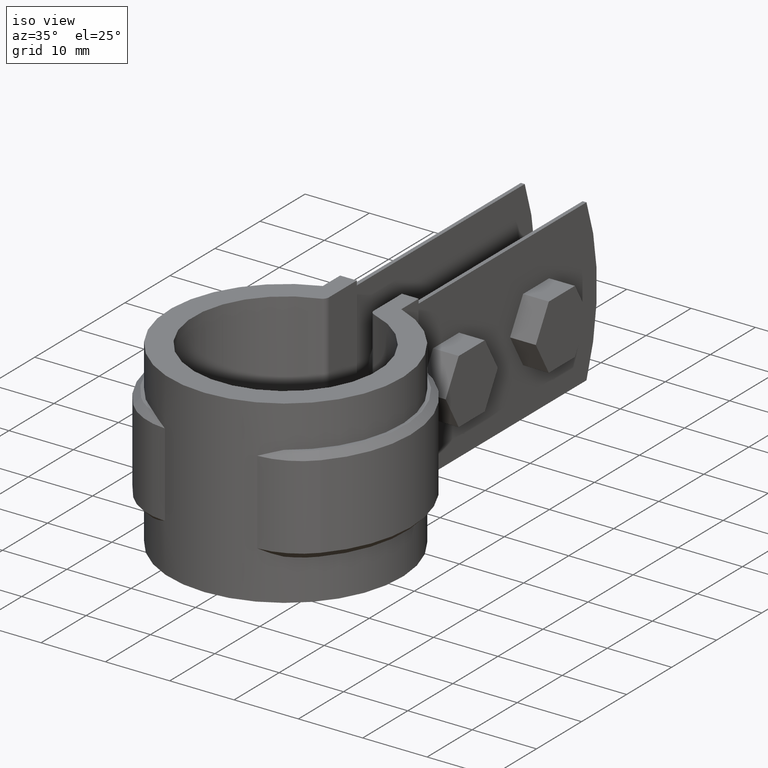
[diagram: clean part render]
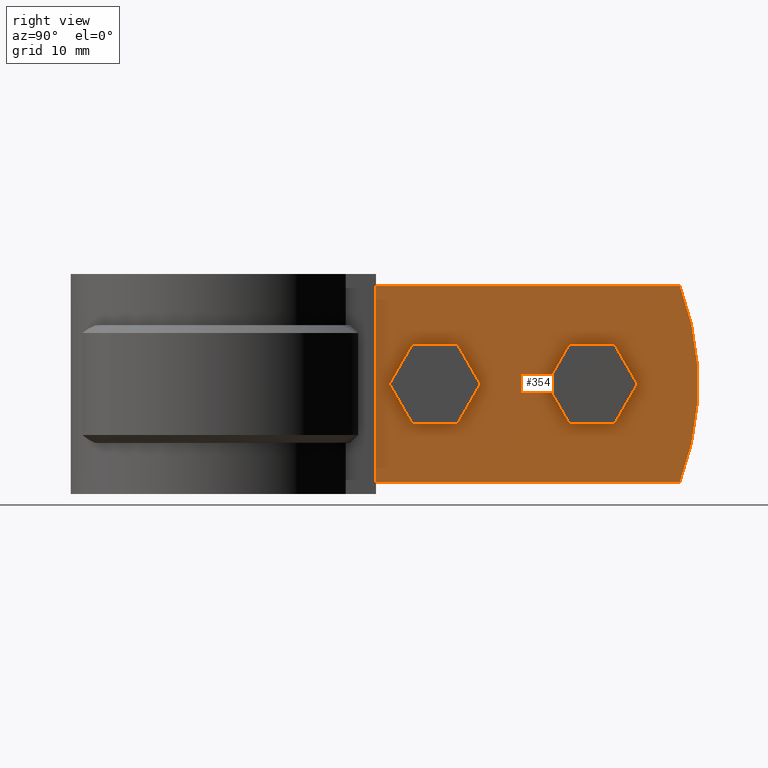
[diagram: tour spotlight — one face highlighted and labeled with its STEP entity id]
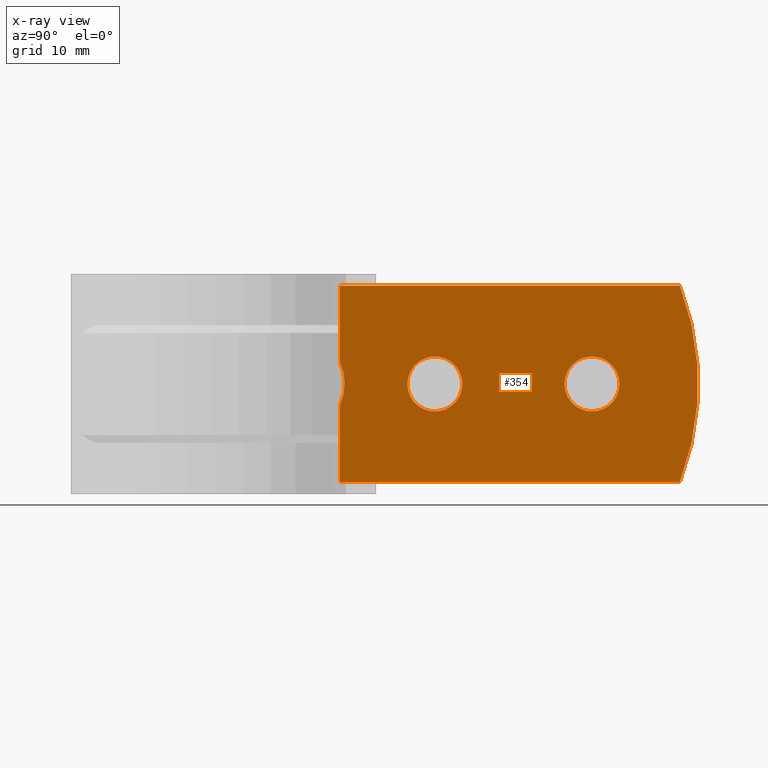
[diagram: x-ray of the same camera — body ghosted, this tour face saturated]
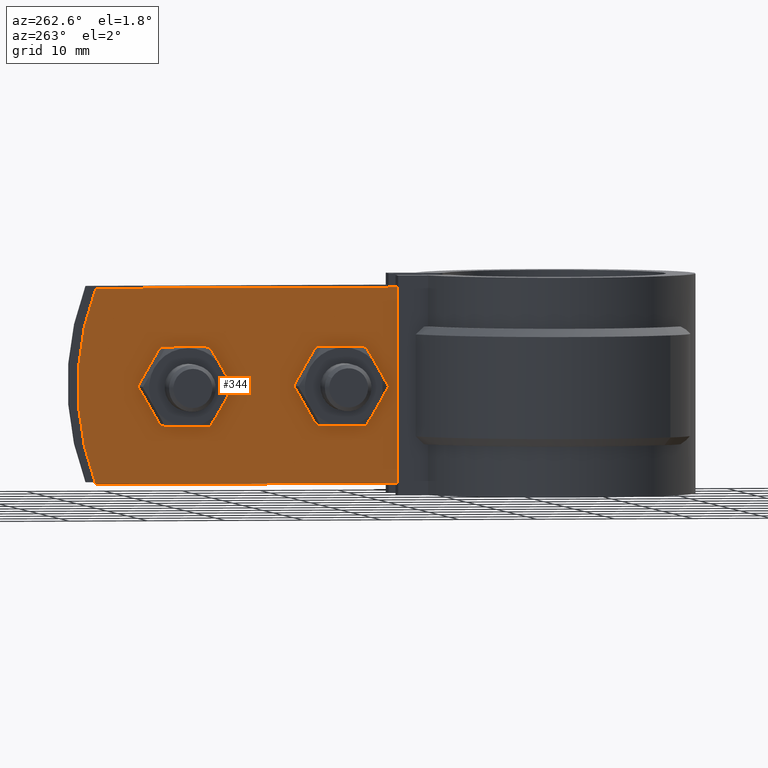
[diagram: tour spotlight — one face highlighted and labeled with its STEP entity id]
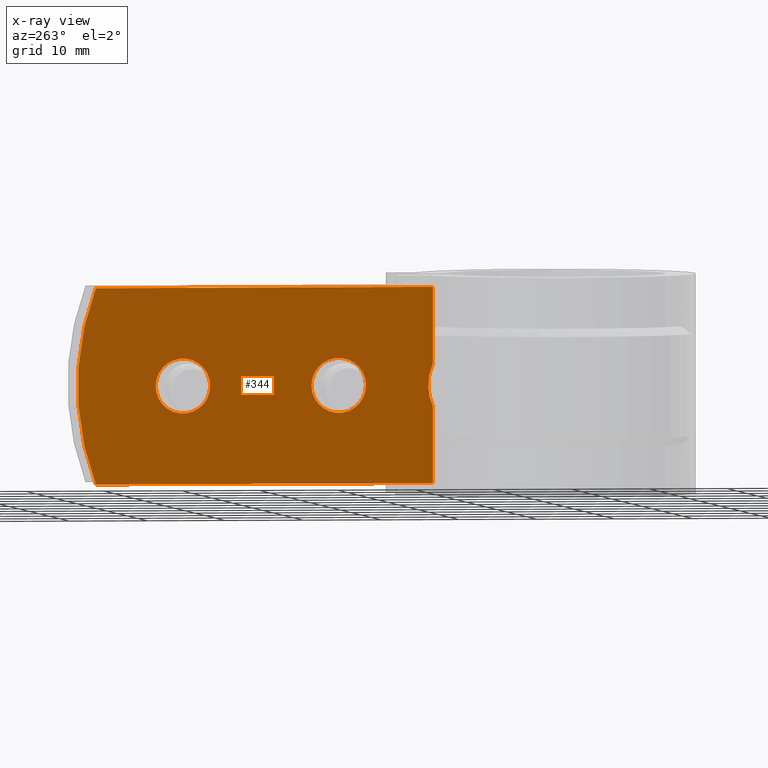
[diagram: x-ray of the same camera — body ghosted, this tour face saturated]
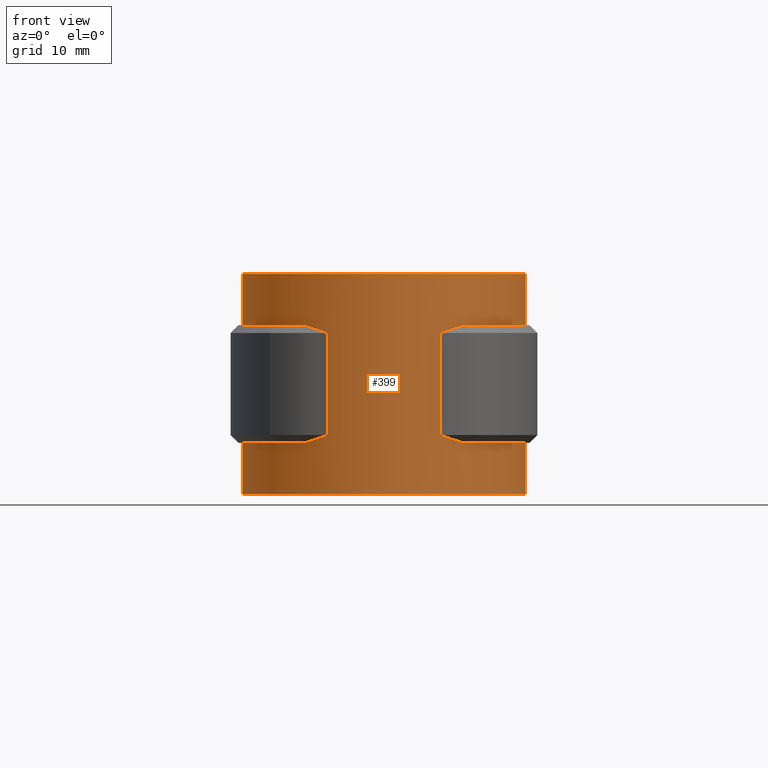
[diagram: tour spotlight — one face highlighted and labeled with its STEP entity id]
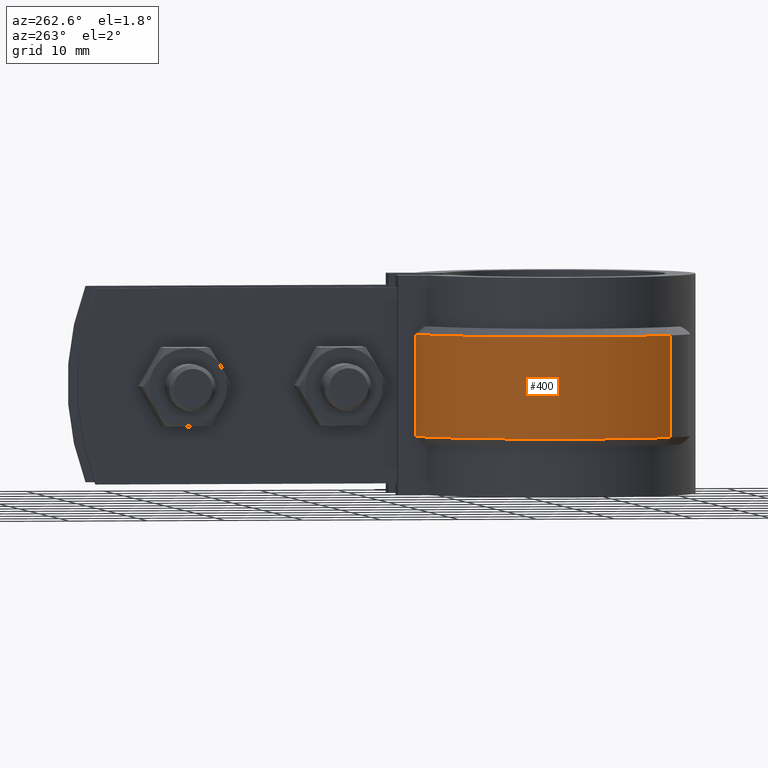
[diagram: tour spotlight — one face highlighted and labeled with its STEP entity id]
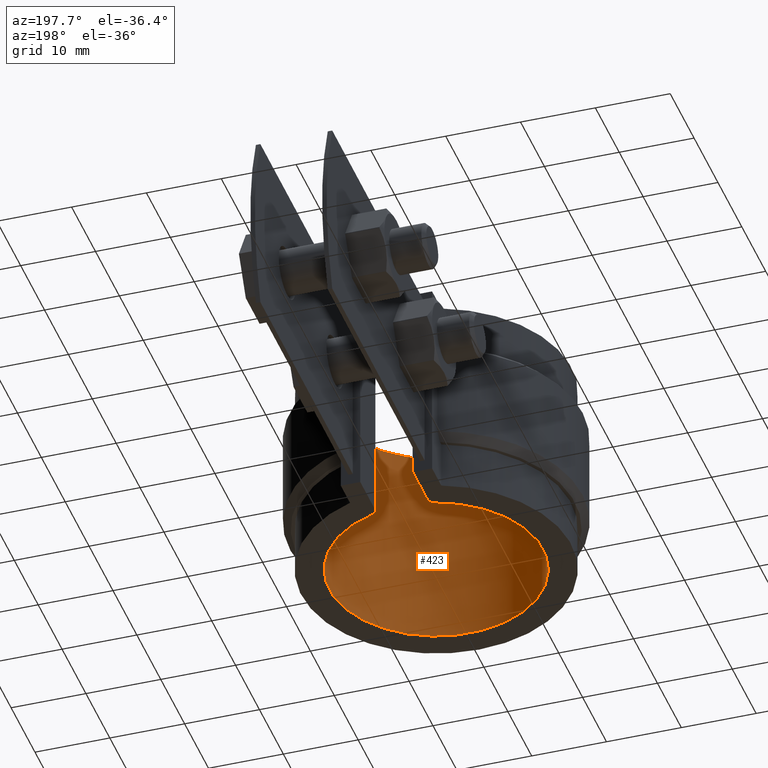
[diagram: tour spotlight — one face highlighted and labeled with its STEP entity id]
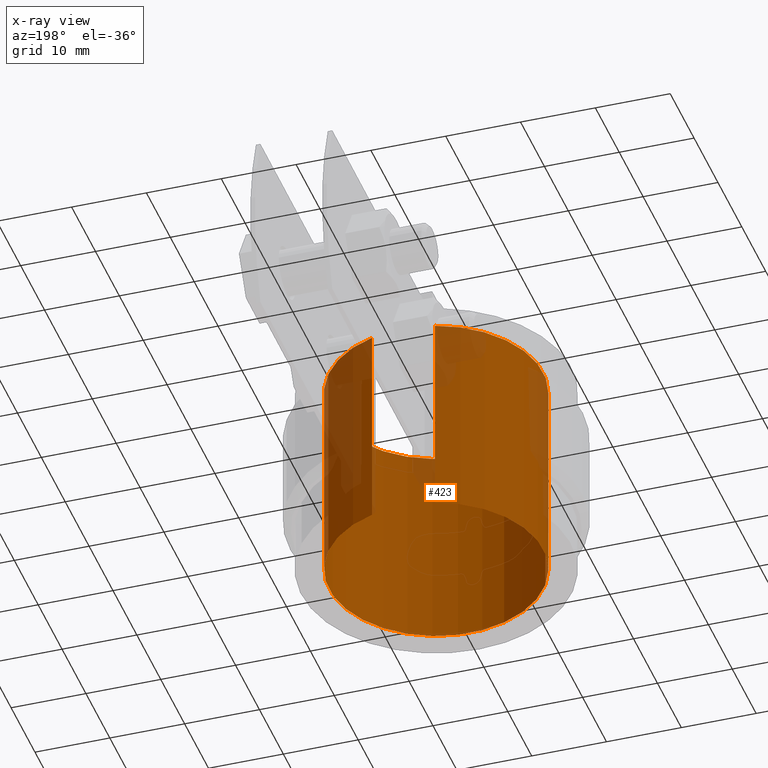
[diagram: x-ray of the same camera — body ghosted, this tour face saturated]
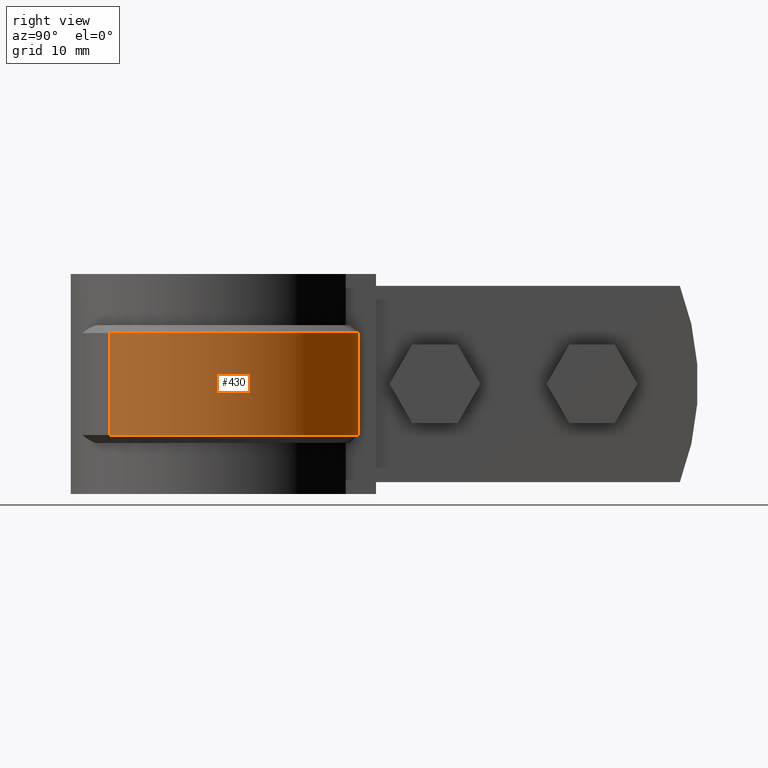
[diagram: tour spotlight — one face highlighted and labeled with its STEP entity id]
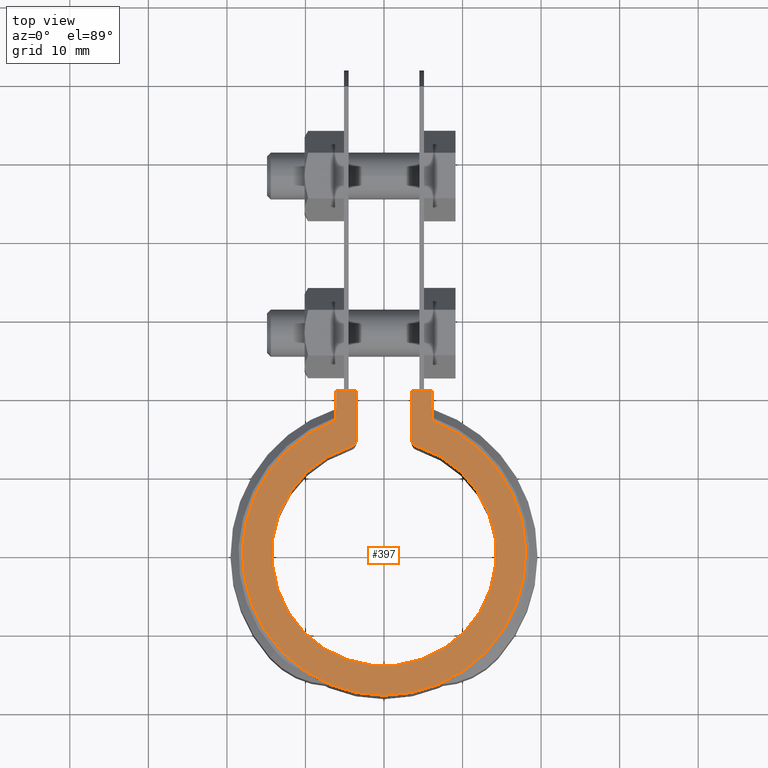
[diagram: tour spotlight — one face highlighted and labeled with its STEP entity id]
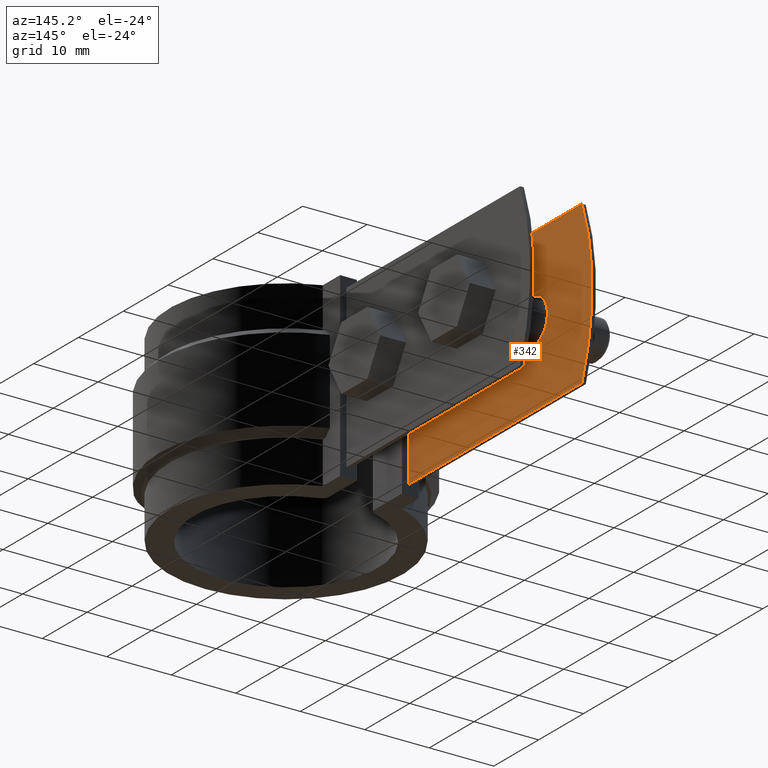
[diagram: tour spotlight — one face highlighted and labeled with its STEP entity id]
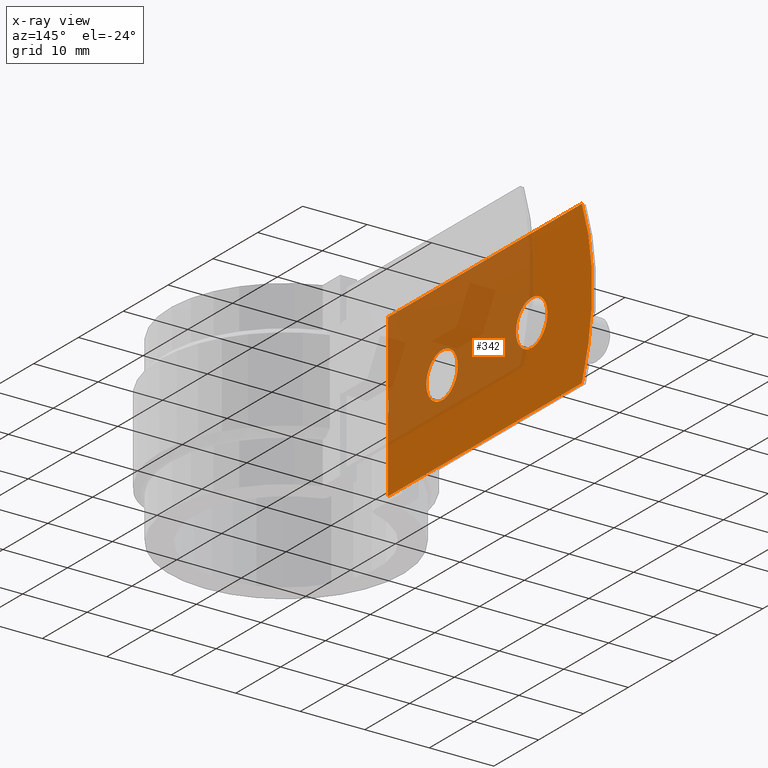
[diagram: x-ray of the same camera — body ghosted, this tour face saturated]
A machine part: a face-by-face anatomy tour. The part has 186 B-rep faces; the first image is the clean iso view, then the 8 largest visible faces are spotlighted one at a time (largest first), each with its STEP entity span.

Face 1 — right view, entity #354. An x-ray twin of the same camera follows (body ghosted, this face saturated) — the face is partly hidden behind the body. In plain terms, the highlighted planar face has unit normal (-1, 0, 0).
Definition (entity closure, byte-faithful):
#354 = ADVANCED_FACE( '', ( #590, #591, #592 ), #593, .F. );
#590 = FACE_BOUND( '', #1212, .T. );
#591 = FACE_BOUND( '', #1213, .T. );
#592 = FACE_OUTER_BOUND( '', #1214, .T. );
#593 = PLANE( '', #1215 );
#1212 = EDGE_LOOP( '', ( #2607 ) );
#1213 = EDGE_LOOP( '', ( #2608 ) );
#1214 = EDGE_LOOP( '', ( #2609, #2610, #2611, #2612, #2613, #2614 ) );
#1215 = AXIS2_PLACEMENT_3D( '', #2615, #2616, #2617 );
#2607 = ORIENTED_EDGE( '', *, *, #4443, .F. );
#2608 = ORIENTED_EDGE( '', *, *, #4440, .F. );
#2609 = ORIENTED_EDGE( '', *, *, #4352, .F. );
#2610 = ORIENTED_EDGE( '', *, *, #4445, .T. );
#2611 = ORIENTED_EDGE( '', *, *, #4446, .T. );
#2612 = ORIENTED_EDGE( '', *, *, #4441, .F. );
#2613 = ORIENTED_EDGE( '', *, *, #4332, .F. );
#2614 = ORIENTED_EDGE( '', *, *, #4372, .T. );
#2615 = CARTESIAN_POINT( '', ( 5.10000000000000, 16.2373058110020, 0.000000000000000 ) );
#2616 = DIRECTION( '', ( -1.00000000000000, 6.12303176911189E-017, 0.000000000000000 ) );
#2617 = DIRECTION( '', ( 6.12303176911189E-017, 1.00000000000000, 0.000000000000000 ) );
#4332 = EDGE_CURVE( '', #4842, #4844, #4845, .T. );
#4352 = EDGE_CURVE( '', #4879, #4873, #4881, .T. );
#4372 = EDGE_CURVE( '', #4842, #4873, #4915, .T. );
#4440 = EDGE_CURVE( '', #5024, #5024, #5025, .F. );
#4441 = EDGE_CURVE( '', #4844, #5026, #5027, .T. );
#4443 = EDGE_CURVE( '', #5029, #5029, #5030, .F. );
#4445 = EDGE_CURVE( '', #4879, #5031, #5033, .T. );
#4446 = EDGE_CURVE( '', #5031, #5026, #5034, .T. );
#4842 = VERTEX_POINT( '', #5785 );
#4844 = VERTEX_POINT( '', #5787 );
#4845 = LINE( '', #5788, #5789 );
#4873 = VERTEX_POINT( '', #5876 );
#4879 = VERTEX_POINT( '', #5939 );
#4881 = B_SPLINE_CURVE_WITH_KNOTS( '', 3, ( #5950, #5951, #5952, #5953, #5954, #5955, #5956, #5957, #5958, #5959, #5960, #5961 ), .UNSPECIFIED., .F., .F., ( 4, 2, 2, 2, 2, 4 ), ( 0.000000000000000, 0.00138728214973930, 0.00277456429947860, 0.00416184644921790, 0.00485548752408755, 0.00554912859895719 ), .UNSPECIFIED. );
#4915 = LINE( '', #6125, #6126 );
#5024 = VERTEX_POINT( '', #6567 );
#5025 = CIRCLE( '', #6568, 3.50000000000000 );
#5026 = VERTEX_POINT( '', #6569 );
#5027 = CIRCLE( '', #6570, 35.0000000000000 );
#5029 = VERTEX_POINT( '', #6573 );
#5030 = CIRCLE( '', #6574, 3.50000000000000 );
#5031 = VERTEX_POINT( '', #6575 );
#5033 = LINE( '', #6577, #6578 );
#5034 = LINE( '', #6579, #6580 );
#5785 = CARTESIAN_POINT( '', ( 5.10000000000000, 16.2373058110020, 0.000000000000000 ) );
#5787 = CARTESIAN_POINT( '', ( 5.09999999999998, 59.5136886423742, -5.19712097809869E-031 ) );
#5788 = CARTESIAN_POINT( '', ( 5.10000000000000, 16.2373058110020, 0.000000000000000 ) );
#5789 = VECTOR( '', #8187, 1000.00000000000 );
#5876 = CARTESIAN_POINT( '', ( 5.10000000000000, 16.2373058110020, -9.79606498355246 ) );
#5939 = CARTESIAN_POINT( '', ( 5.10000000000000, 16.2373058110020, -15.2039350164475 ) );
#5950 = CARTESIAN_POINT( '', ( 5.10000000000000, 16.2373058110020, -15.2039350164475 ) );
#5951 = CARTESIAN_POINT( '', ( 5.10000000000000, 16.4315927832088, -14.7773714083927 ) );
#5952 = CARTESIAN_POINT( '', ( 5.10000000000000, 16.5789455950492, -14.3381576368187 ) );
#5953 = CARTESIAN_POINT( '', ( 5.10000000000000, 16.7805541732397, -13.4346376484368 ) );
#5954 = CARTESIAN_POINT( '', ( 5.09999999999998, 16.8342213574134, -12.9645446164013 ) );
#5955 = CARTESIAN_POINT( '', ( 5.09999999999998, 16.8344053278858, -12.0378944378008 ) );
#5956 = CARTESIAN_POINT( '', ( 5.10000000000000, 16.7827899506090, -11.5786923289417 ) );
#5957 = CARTESIAN_POINT( '', ( 5.10000000000000, 16.6315029371098, -10.8957788416371 ) );
#5958 = CARTESIAN_POINT( '', ( 5.10000000000001, 16.5685275525493, -10.6693284421304 ) );
#5959 = CARTESIAN_POINT( '', ( 5.10000000000001, 16.4200973172809, -10.2266311927812 ) );
#5960 = CARTESIAN_POINT( '', ( 5.09999999999998, 16.3344383490480, -10.0093227507501 ) );
#5961 = CARTESIAN_POINT( '', ( 5.09999999999998, 16.2373058110020, -9.79606498355245 ) );
#6125 = CARTESIAN_POINT( '', ( 5.10000000000000, 16.2373058110020, 0.000000000000000 ) );
#6126 = VECTOR( '', #8224, 1000.00000000000 );
#6567 = CARTESIAN_POINT( '', ( 5.10000000000000, 44.8219465658192, -12.5000000000000 ) );
#6568 = AXIS2_PLACEMENT_3D( '', #8304, #8305, #8306 );
#6569 = CARTESIAN_POINT( '', ( 5.09999999999998, 59.5136886423742, -25.0000000000000 ) );
#6570 = AXIS2_PLACEMENT_3D( '', #8307, #8308, #8309 );
#6573 = CARTESIAN_POINT( '', ( 5.10000000000000, 24.8219465658192, -12.5000000000000 ) );
#6574 = AXIS2_PLACEMENT_3D( '', #8311, #8312, #8313 );
#6575 = CARTESIAN_POINT( '', ( 5.10000000000000, 16.2373058110020, -25.0000000000000 ) );
#6577 = CARTESIAN_POINT( '', ( 5.10000000000000, 16.2373058110020, 0.000000000000000 ) );
#6578 = VECTOR( '', #8317, 1000.00000000000 );
#6579 = CARTESIAN_POINT( '', ( 5.10000000000000, 16.2373058110020, -25.0000000000000 ) );
#6580 = VECTOR( '', #8318, 1000.00000000000 );
#8187 = DIRECTION( '', ( 6.12303176911189E-017, 1.00000000000000, 0.000000000000000 ) );
#8224 = DIRECTION( '', ( 0.000000000000000, 0.000000000000000, -1.00000000000000 ) );
#8304 = CARTESIAN_POINT( '', ( 5.10000000000000, 48.3219465658192, -12.5000000000000 ) );
#8305 = DIRECTION( '', ( -1.00000000000000, 6.12303176911189E-017, 0.000000000000000 ) );
#8306 = DIRECTION( '', ( -6.12303176911189E-017, -1.00000000000000, 0.000000000000000 ) );
#8307 = CARTESIAN_POINT( '', ( 5.10000000000001, 26.8219465658192, -12.5000000000000 ) );
#8308 = DIRECTION( '', ( -1.00000000000000, 6.12303176911189E-017, 0.000000000000000 ) );
#8309 = DIRECTION( '', ( -6.12303176911189E-017, -1.00000000000000, 0.000000000000000 ) );
#8311 = CARTESIAN_POINT( '', ( 5.10000000000000, 28.3219465658192, -12.5000000000000 ) );
#8312 = DIRECTION( '', ( -1.00000000000000, 6.12303176911189E-017, 0.000000000000000 ) );
#8313 = DIRECTION( '', ( -6.12303176911189E-017, -1.00000000000000, 0.000000000000000 ) );
#8317 = DIRECTION( '', ( 0.000000000000000, 0.000000000000000, -1.00000000000000 ) );
#8318 = DIRECTION( '', ( 6.12303176911189E-017, 1.00000000000000, 0.000000000000000 ) );

Face 2 — auxiliary view, entity #344. An x-ray twin of the same camera follows (body ghosted, this face saturated) — the face is partly hidden behind the body. In plain terms, the highlighted planar face has unit normal (1, -0, 0).
Definition (entity closure, byte-faithful):
#344 = ADVANCED_FACE( '', ( #563, #564, #565 ), #566, .F. );
#563 = FACE_BOUND( '', #1185, .T. );
#564 = FACE_BOUND( '', #1186, .T. );
#565 = FACE_OUTER_BOUND( '', #1187, .T. );
#566 = PLANE( '', #1188 );
#1185 = EDGE_LOOP( '', ( #2426 ) );
#1186 = EDGE_LOOP( '', ( #2427 ) );
#1187 = EDGE_LOOP( '', ( #2428, #2429, #2430, #2431, #2432, #2433 ) );
#1188 = AXIS2_PLACEMENT_3D( '', #2434, #2435, #2436 );
#2426 = ORIENTED_EDGE( '', *, *, #4423, .F. );
#2427 = ORIENTED_EDGE( '', *, *, #4430, .F. );
#2428 = ORIENTED_EDGE( '', *, *, #4357, .F. );
#2429 = ORIENTED_EDGE( '', *, *, #4371, .F. );
#2430 = ORIENTED_EDGE( '', *, *, #4329, .F. );
#2431 = ORIENTED_EDGE( '', *, *, #4431, .F. );
#2432 = ORIENTED_EDGE( '', *, *, #4432, .T. );
#2433 = ORIENTED_EDGE( '', *, *, #4433, .F. );
#2434 = CARTESIAN_POINT( '', ( -5.10000000000000, 61.8219465658192, 0.000000000000000 ) );
#2435 = DIRECTION( '', ( 1.00000000000000, -6.12303176911189E-017, 0.000000000000000 ) );
#2436 = DIRECTION( '', ( -6.12303176911189E-017, -1.00000000000000, 0.000000000000000 ) );
#4329 = EDGE_CURVE( '', #4836, #4839, #4840, .T. );
#4357 = EDGE_CURVE( '', #4888, #4882, #4890, .T. );
#4371 = EDGE_CURVE( '', #4839, #4888, #4914, .T. );
#4423 = EDGE_CURVE( '', #4996, #4996, #4997, .F. );
#4430 = EDGE_CURVE( '', #5008, #5008, #5009, .F. );
#4431 = EDGE_CURVE( '', #5010, #4836, #5011, .T. );
#4432 = EDGE_CURVE( '', #5010, #5012, #5013, .T. );
#4433 = EDGE_CURVE( '', #4882, #5012, #5014, .T. );
#4836 = VERTEX_POINT( '', #5777 );
#4839 = VERTEX_POINT( '', #5781 );
#4840 = LINE( '', #5782, #5783 );
#4882 = VERTEX_POINT( '', #5962 );
#4888 = VERTEX_POINT( '', #6027 );
#4890 = B_SPLINE_CURVE_WITH_KNOTS( '', 3, ( #6038, #6039, #6040, #6041, #6042, #6043, #6044, #6045, #6046, #6047, #6048, #6049 ), .UNSPECIFIED., .F., .F., ( 4, 2, 2, 2, 2, 4 ), ( 0.000000000000000, 0.00138728214973932, 0.00277456429947863, 0.00416184644921795, 0.00485548752408760, 0.00554912859895726 ), .UNSPECIFIED. );
#4914 = LINE( '', #6123, #6124 );
#4996 = VERTEX_POINT( '', #6532 );
#4997 = CIRCLE( '', #6533, 3.50000000000000 );
#5008 = VERTEX_POINT( '', #6547 );
#5009 = CIRCLE( '', #6548, 3.50000000000000 );
#5010 = VERTEX_POINT( '', #6549 );
#5011 = CIRCLE( '', #6550, 35.0000000000000 );
#5012 = VERTEX_POINT( '', #6551 );
#5013 = LINE( '', #6552, #6553 );
#5014 = LINE( '', #6554, #6555 );
#5777 = CARTESIAN_POINT( '', ( -5.10000000000002, 59.5136886423742, -4.56849744425070E-031 ) );
#5781 = CARTESIAN_POINT( '', ( -5.10000000000000, 16.2373058110020, 0.000000000000000 ) );
#5782 = CARTESIAN_POINT( '', ( -5.10000000000000, 61.8219465658192, 0.000000000000000 ) );
#5783 = VECTOR( '', #8180, 1000.00000000000 );
#5962 = CARTESIAN_POINT( '', ( -5.10000000000000, 16.2373058110020, -15.2039350164476 ) );
#6027 = CARTESIAN_POINT( '', ( -5.10000000000000, 16.2373058110020, -9.79606498355244 ) );
#6038 = CARTESIAN_POINT( '', ( -5.10000000000000, 16.2373058110020, -9.79606498355244 ) );
#6039 = CARTESIAN_POINT( '', ( -5.10000000000000, 16.4315927832088, -10.2226285916073 ) );
#6040 = CARTESIAN_POINT( '', ( -5.10000000000000, 16.5789455950492, -10.6618423631813 ) );
#6041 = CARTESIAN_POINT( '', ( -5.10000000000000, 16.7805541732397, -11.5653623515632 ) );
#6042 = CARTESIAN_POINT( '', ( -5.09999999999998, 16.8342213574134, -12.0354553835987 ) );
#6043 = CARTESIAN_POINT( '', ( -5.09999999999998, 16.8344053278858, -12.9621055621992 ) );
#6044 = CARTESIAN_POINT( '', ( -5.10000000000000, 16.7827899506090, -13.4213076710583 ) );
#6045 = CARTESIAN_POINT( '', ( -5.10000000000000, 16.6315029371098, -14.1042211583629 ) );
#6046 = CARTESIAN_POINT( '', ( -5.10000000000001, 16.5685275525493, -14.3306715578697 ) );
#6047 = CARTESIAN_POINT( '', ( -5.10000000000001, 16.4200973172809, -14.7733688072189 ) );
#6048 = CARTESIAN_POINT( '', ( -5.09999999999998, 16.3344383490480, -14.9906772492500 ) );
#6049 = CARTESIAN_POINT( '', ( -5.09999999999998, 16.2373058110020, -15.2039350164476 ) );
#6123 = CARTESIAN_POINT( '', ( -5.10000000000000, 16.2373058110020, 0.000000000000000 ) );
#6124 = VECTOR( '', #8223, 1000.00000000000 );
#6532 = CARTESIAN_POINT( '', ( -5.10000000000000, 31.8219465658192, -12.5000000000000 ) );
#6533 = AXIS2_PLACEMENT_3D( '', #8267, #8268, #8269 );
#6547 = CARTESIAN_POINT( '', ( -5.10000000000000, 51.8219465658192, -12.5000000000000 ) );
#6548 = AXIS2_PLACEMENT_3D( '', #8282, #8283, #8284 );
#6549 = CARTESIAN_POINT( '', ( -5.10000000000002, 59.5136886423742, -25.0000000000000 ) );
#6550 = AXIS2_PLACEMENT_3D( '', #8285, #8286, #8287 );
#6551 = CARTESIAN_POINT( '', ( -5.10000000000000, 16.2373058110020, -25.0000000000000 ) );
#6552 = CARTESIAN_POINT( '', ( -5.10000000000000, 61.8219465658192, -25.0000000000000 ) );
#6553 = VECTOR( '', #8288, 1000.00000000000 );
#6554 = CARTESIAN_POINT( '', ( -5.10000000000000, 16.2373058110020, 0.000000000000000 ) );
#6555 = VECTOR( '', #8289, 1000.00000000000 );
#8180 = DIRECTION( '', ( -6.12303176911189E-017, -1.00000000000000, 0.000000000000000 ) );
#8223 = DIRECTION( '', ( 0.000000000000000, 0.000000000000000, -1.00000000000000 ) );
#8267 = CARTESIAN_POINT( '', ( -5.10000000000000, 28.3219465658192, -12.5000000000000 ) );
#8268 = DIRECTION( '', ( 1.00000000000000, -6.12303176911189E-017, 0.000000000000000 ) );
#8269 = DIRECTION( '', ( 6.12303176911189E-017, 1.00000000000000, 0.000000000000000 ) );
#8282 = CARTESIAN_POINT( '', ( -5.10000000000000, 48.3219465658192, -12.5000000000000 ) );
#8283 = DIRECTION( '', ( 1.00000000000000, -6.12303176911189E-017, 0.000000000000000 ) );
#8284 = DIRECTION( '', ( 6.12303176911189E-017, 1.00000000000000, 0.000000000000000 ) );
#8285 = CARTESIAN_POINT( '', ( -5.09999999999999, 26.8219465658192, -12.5000000000000 ) );
#8286 = DIRECTION( '', ( 1.00000000000000, -6.12303176911189E-017, 0.000000000000000 ) );
#8287 = DIRECTION( '', ( 6.12303176911189E-017, 1.00000000000000, 0.000000000000000 ) );
#8288 = DIRECTION( '', ( -6.12303176911189E-017, -1.00000000000000, 0.000000000000000 ) );
#8289 = DIRECTION( '', ( 0.000000000000000, 0.000000000000000, -1.00000000000000 ) );

Face 3 — front view, entity #399. In plain terms, the highlighted cylindrical surface (partial cylindrical patch) has radius 18.035 mm, axis along (0, 0, -1).
Definition (entity closure, byte-faithful):
#399 = ADVANCED_FACE( '', ( #683 ), #684, .T. );
#683 = FACE_OUTER_BOUND( '', #1525, .T. );
#684 = CYLINDRICAL_SURFACE( '', #1526, 18.0350000000000 );
#1525 = EDGE_LOOP( '', ( #3554, #3555, #3556, #3557, #3558, #3559, #3560, #3561, #3562, #3563, #3564, #3565, #3566, #3567, #3568, #3569 ) );
#1526 = AXIS2_PLACEMENT_3D( '', #3570, #3571, #3572 );
#3554 = ORIENTED_EDGE( '', *, *, #4616, .F. );
#3555 = ORIENTED_EDGE( '', *, *, #4617, .T. );
#3556 = ORIENTED_EDGE( '', *, *, #4618, .T. );
#3557 = ORIENTED_EDGE( '', *, *, #4619, .T. );
#3558 = ORIENTED_EDGE( '', *, *, #4620, .T. );
#3559 = ORIENTED_EDGE( '', *, *, #4609, .T. );
#3560 = ORIENTED_EDGE( '', *, *, #4600, .T. );
#3561 = ORIENTED_EDGE( '', *, *, #4469, .F. );
#3562 = ORIENTED_EDGE( '', *, *, #4621, .T. );
#3563 = ORIENTED_EDGE( '', *, *, #4622, .T. );
#3564 = ORIENTED_EDGE( '', *, *, #4623, .T. );
#3565 = ORIENTED_EDGE( '', *, *, #4624, .T. );
#3566 = ORIENTED_EDGE( '', *, *, #4625, .F. );
#3567 = ORIENTED_EDGE( '', *, *, #4463, .F. );
#3568 = ORIENTED_EDGE( '', *, *, #4461, .F. );
#3569 = ORIENTED_EDGE( '', *, *, #4615, .T. );
#3570 = CARTESIAN_POINT( '', ( 0.000000000000000, 1.38777878078145E-014, -26.5000000000000 ) );
#3571 = DIRECTION( '', ( 0.000000000000000, 0.000000000000000, -1.00000000000000 ) );
#3572 = DIRECTION( '', ( 0.000000000000000, -1.00000000000000, 0.000000000000000 ) );
#4461 = EDGE_CURVE( '', #5057, #5040, #5059, .T. );
#4463 = EDGE_CURVE( '', #5040, #5062, #5063, .T. );
#4469 = EDGE_CURVE( '', #5072, #5074, #5075, .T. );
#4600 = EDGE_CURVE( '', #5295, #5074, #5296, .T. );
#4609 = EDGE_CURVE( '', #5311, #5295, #5312, .T. );
#4615 = EDGE_CURVE( '', #5057, #5321, #5323, .T. );
#4616 = EDGE_CURVE( '', #5324, #5321, #5325, .T. );
#4617 = EDGE_CURVE( '', #5324, #5326, #5327, .T. );
#4618 = EDGE_CURVE( '', #5326, #5328, #5329, .T. );
#4619 = EDGE_CURVE( '', #5328, #5330, #5331, .T. );
#4620 = EDGE_CURVE( '', #5330, #5311, #5332, .T. );
#4621 = EDGE_CURVE( '', #5072, #5333, #5334, .T. );
#4622 = EDGE_CURVE( '', #5333, #5335, #5336, .T. );
#4623 = EDGE_CURVE( '', #5335, #5337, #5338, .F. );
#4624 = EDGE_CURVE( '', #5337, #5339, #5340, .T. );
#4625 = EDGE_CURVE( '', #5062, #5339, #5341, .T. );
#5040 = VERTEX_POINT( '', #6590 );
#5057 = VERTEX_POINT( '', #6612 );
#5059 = CIRCLE( '', #6615, 18.0350000000000 );
#5062 = VERTEX_POINT( '', #6619 );
#5063 = LINE( '', #6620, #6621 );
#5072 = VERTEX_POINT( '', #6638 );
#5074 = VERTEX_POINT( '', #6641 );
#5075 = LINE( '', #6642, #6643 );
#5295 = VERTEX_POINT( '', #7593 );
#5296 = CIRCLE( '', #7594, 18.0350000000000 );
#5311 = VERTEX_POINT( '', #7614 );
#5312 = LINE( '', #7615, #7616 );
#5321 = VERTEX_POINT( '', #7633 );
#5323 = LINE( '', #7636, #7637 );
#5324 = VERTEX_POINT( '', #7638 );
#5325 = CIRCLE( '', #7639, 18.0350000000000 );
#5326 = VERTEX_POINT( '', #7640 );
#5327 = B_SPLINE_CURVE_WITH_KNOTS( '', 3, ( #7641, #7642, #7643, #7644 ), .UNSPECIFIED., .F., .F., ( 4, 4 ), ( 8.49837472194074E-018, 0.00356639113726256 ), .UNSPECIFIED. );
#5328 = VERTEX_POINT( '', #7645 );
#5329 = LINE( '', #7646, #7647 );
#5330 = VERTEX_POINT( '', #7648 );
#5331 = B_SPLINE_CURVE_WITH_KNOTS( '', 3, ( #7649, #7650, #7651, #7652 ), .UNSPECIFIED., .F., .F., ( 4, 4 ), ( 0.000000000000000, 0.00356639113726257 ), .UNSPECIFIED. );
#5332 = CIRCLE( '', #7653, 18.0350000000000 );
#5333 = VERTEX_POINT( '', #7654 );
#5334 = CIRCLE( '', #7655, 18.0350000000000 );
#5335 = VERTEX_POINT( '', #7656 );
#5336 = B_SPLINE_CURVE_WITH_KNOTS( '', 3, ( #7657, #7658, #7659, #7660 ), .UNSPECIFIED., .F., .F., ( 4, 4 ), ( 9.69739903612216E-018, 0.00356639113726256 ), .UNSPECIFIED. );
#5337 = VERTEX_POINT( '', #7661 );
#5338 = LINE( '', #7662, #7663 );
#5339 = VERTEX_POINT( '', #7664 );
#5340 = B_SPLINE_CURVE_WITH_KNOTS( '', 3, ( #7665, #7666, #7667, #7668 ), .UNSPECIFIED., .F., .F., ( 4, 4 ), ( 0.000000000000000, 0.00356639113726257 ), .UNSPECIFIED. );
#5341 = CIRCLE( '', #7669, 18.0350000000000 );
#6590 = CARTESIAN_POINT( '', ( -6.10000000000003, 16.9720719124095, -26.5000000000000 ) );
#6612 = CARTESIAN_POINT( '', ( 6.09999999999998, 16.9720719124095, -26.5000000000000 ) );
#6615 = AXIS2_PLACEMENT_3D( '', #8341, #8342, #8343 );
#6619 = CARTESIAN_POINT( '', ( -6.10000000000003, 16.9720719124095, -20.0000000000000 ) );
#6620 = CARTESIAN_POINT( '', ( -6.10000000000003, 16.9720719124095, -26.5000000000000 ) );
#6621 = VECTOR( '', #8345, 1000.00000000000 );
#6638 = CARTESIAN_POINT( '', ( -6.10000000000003, 16.9720719124095, -5.00000000000000 ) );
#6641 = CARTESIAN_POINT( '', ( -6.10000000000003, 16.9720719124095, 1.50000000000000 ) );
#6642 = CARTESIAN_POINT( '', ( -6.10000000000003, 16.9720719124095, -26.5000000000000 ) );
#6643 = VECTOR( '', #8349, 1000.00000000000 );
#7593 = CARTESIAN_POINT( '', ( 6.09999999999998, 16.9720719124095, 1.50000000000000 ) );
#7594 = AXIS2_PLACEMENT_3D( '', #8480, #8481, #8482 );
#7614 = CARTESIAN_POINT( '', ( 6.09999999999998, 16.9720719124095, -5.00000000000000 ) );
#7615 = CARTESIAN_POINT( '', ( 6.09999999999998, 16.9720719124095, -26.5000000000000 ) );
#7616 = VECTOR( '', #8497, 1000.00000000000 );
#7633 = CARTESIAN_POINT( '', ( 6.09999999999998, 16.9720719124095, -20.0000000000000 ) );
#7636 = CARTESIAN_POINT( '', ( 6.09999999999998, 16.9720719124095, -26.5000000000000 ) );
#7637 = VECTOR( '', #8501, 1000.00000000000 );
#7638 = CARTESIAN_POINT( '', ( 10.1699563448573, -14.8940663669697, -20.0000000000000 ) );
#7639 = AXIS2_PLACEMENT_3D( '', #8502, #8503, #8504 );
#7640 = CARTESIAN_POINT( '', ( 7.17238060487721, -16.5474524159697, -19.0000000000000 ) );
#7641 = CARTESIAN_POINT( '', ( 10.1699563448573, -14.8940663669697, -20.0000000000000 ) );
#7642 = CARTESIAN_POINT( '', ( 9.20551594035216, -15.5526049130839, -19.7400863560935 ) );
#7643 = CARTESIAN_POINT( '', ( 8.20683278901869, -16.0990761586644, -19.3975274280984 ) );
#7644 = CARTESIAN_POINT( '', ( 7.17238060487720, -16.5474524159697, -19.0000000000000 ) );
#7645 = CARTESIAN_POINT( '', ( 7.17238060487721, -16.5474524159697, -6.00000000000000 ) );
#7646 = CARTESIAN_POINT( '', ( 7.17238060487721, -16.5474524159697, -12.5000000000000 ) );
#7647 = VECTOR( '', #8505, 1000.00000000000 );
#7648 = CARTESIAN_POINT( '', ( 10.1699563448573, -14.8940663669697, -5.00000000000000 ) );
#7649 = CARTESIAN_POINT( '', ( 7.17238060487721, -16.5474524159697, -6.00000000000000 ) );
#7650 = CARTESIAN_POINT( '', ( 8.20683278901869, -16.0990761586644, -5.60247257190161 ) );
#7651 = CARTESIAN_POINT( '', ( 9.20551594035216, -15.5526049130839, -5.25991364390649 ) );
#7652 = CARTESIAN_POINT( '', ( 10.1699563448573, -14.8940663669697, -5.00000000000000 ) );
#7653 = AXIS2_PLACEMENT_3D( '', #8506, #8507, #8508 );
#7654 = CARTESIAN_POINT( '', ( -10.1699563448573, -14.8940663669697, -5.00000000000000 ) );
#7655 = AXIS2_PLACEMENT_3D( '', #8509, #8510, #8511 );
#7656 = CARTESIAN_POINT( '', ( -7.17238060487721, -16.5474524159697, -6.00000000000000 ) );
#7657 = CARTESIAN_POINT( '', ( -10.1699563448573, -14.8940663669697, -5.00000000000000 ) );
#7658 = CARTESIAN_POINT( '', ( -9.20551594035216, -15.5526049130839, -5.25991364390649 ) );
#7659 = CARTESIAN_POINT( '', ( -8.20683278901869, -16.0990761586644, -5.60247257190161 ) );
#7660 = CARTESIAN_POINT( '', ( -7.17238060487720, -16.5474524159697, -6.00000000000000 ) );
#7661 = CARTESIAN_POINT( '', ( -7.17238060487721, -16.5474524159697, -19.0000000000000 ) );
#7662 = CARTESIAN_POINT( '', ( -7.17238060487721, -16.5474524159697, -12.5000000000000 ) );
#7663 = VECTOR( '', #8512, 1000.00000000000 );
#7664 = CARTESIAN_POINT( '', ( -10.1699563448573, -14.8940663669697, -20.0000000000000 ) );
#7665 = CARTESIAN_POINT( '', ( -7.17238060487721, -16.5474524159697, -19.0000000000000 ) );
#7666 = CARTESIAN_POINT( '', ( -8.20683278901869, -16.0990761586644, -19.3975274280984 ) );
#7667 = CARTESIAN_POINT( '', ( -9.20551594035216, -15.5526049130839, -19.7400863560935 ) );
#7668 = CARTESIAN_POINT( '', ( -10.1699563448573, -14.8940663669697, -20.0000000000000 ) );
#7669 = AXIS2_PLACEMENT_3D( '', #8513, #8514, #8515 );
#8341 = CARTESIAN_POINT( '', ( 0.000000000000000, 1.38777878078145E-014, -26.5000000000000 ) );
#8342 = DIRECTION( '', ( 0.000000000000000, 0.000000000000000, -1.00000000000000 ) );
#8343 = DIRECTION( '', ( 1.00000000000000, 0.000000000000000, 0.000000000000000 ) );
#8345 = DIRECTION( '', ( 0.000000000000000, 0.000000000000000, 1.00000000000000 ) );
#8349 = DIRECTION( '', ( 0.000000000000000, 0.000000000000000, 1.00000000000000 ) );
#8480 = CARTESIAN_POINT( '', ( 0.000000000000000, 1.38777878078145E-014, 1.50000000000000 ) );
#8481 = DIRECTION( '', ( 0.000000000000000, 0.000000000000000, -1.00000000000000 ) );
#8482 = DIRECTION( '', ( 1.00000000000000, 0.000000000000000, 0.000000000000000 ) );
#8497 = DIRECTION( '', ( 0.000000000000000, 0.000000000000000, 1.00000000000000 ) );
#8501 = DIRECTION( '', ( 0.000000000000000, 0.000000000000000, 1.00000000000000 ) );
#8502 = CARTESIAN_POINT( '', ( 0.000000000000000, 1.38777878078145E-014, -20.0000000000000 ) );
#8503 = DIRECTION( '', ( 0.000000000000000, 0.000000000000000, 1.00000000000000 ) );
#8504 = DIRECTION( '', ( 1.00000000000000, 0.000000000000000, 0.000000000000000 ) );
#8505 = DIRECTION( '', ( 0.000000000000000, 0.000000000000000, 1.00000000000000 ) );
#8506 = CARTESIAN_POINT( '', ( 0.000000000000000, 1.38777878078145E-014, -5.00000000000000 ) );
#8507 = DIRECTION( '', ( 0.000000000000000, 0.000000000000000, 1.00000000000000 ) );
#8508 = DIRECTION( '', ( 1.00000000000000, 0.000000000000000, 0.000000000000000 ) );
#8509 = CARTESIAN_POINT( '', ( 0.000000000000000, 1.38777878078145E-014, -5.00000000000000 ) );
#8510 = DIRECTION( '', ( 0.000000000000000, 0.000000000000000, 1.00000000000000 ) );
#8511 = DIRECTION( '', ( 1.00000000000000, 0.000000000000000, 0.000000000000000 ) );
#8512 = DIRECTION( '', ( 0.000000000000000, 0.000000000000000, 1.00000000000000 ) );
#8513 = CARTESIAN_POINT( '', ( 0.000000000000000, 1.38777878078145E-014, -20.0000000000000 ) );
#8514 = DIRECTION( '', ( 0.000000000000000, 0.000000000000000, 1.00000000000000 ) );
#8515 = DIRECTION( '', ( 1.00000000000000, 0.000000000000000, 0.000000000000000 ) );

Face 4 — auxiliary view, entity #400. In plain terms, the highlighted cylindrical surface (partial cylindrical patch) has radius 19.535 mm, axis along (0, 0, -1).
Definition (entity closure, byte-faithful):
#400 = ADVANCED_FACE( '', ( #685 ), #686, .T. );
#685 = FACE_OUTER_BOUND( '', #1527, .T. );
#686 = CYLINDRICAL_SURFACE( '', #1528, 19.5350000000000 );
#1527 = EDGE_LOOP( '', ( #3573, #3574, #3575, #3576 ) );
#1528 = AXIS2_PLACEMENT_3D( '', #3577, #3578, #3579 );
#3573 = ORIENTED_EDGE( '', *, *, #4626, .T. );
#3574 = ORIENTED_EDGE( '', *, *, #4627, .T. );
#3575 = ORIENTED_EDGE( '', *, *, #4466, .F. );
#3576 = ORIENTED_EDGE( '', *, *, #4628, .T. );
#3577 = CARTESIAN_POINT( '', ( -8.67361737988404E-016, 0.000000000000000, -20.0000000000000 ) );
#3578 = DIRECTION( '', ( 0.000000000000000, 0.000000000000000, -1.00000000000000 ) );
#3579 = DIRECTION( '', ( -0.261069874584080, 0.965319905826381, 0.000000000000000 ) );
#4466 = EDGE_CURVE( '', #5066, #5068, #5069, .T. );
#4626 = EDGE_CURVE( '', #5342, #5343, #5344, .T. );
#4627 = EDGE_CURVE( '', #5343, #5068, #5345, .F. );
#4628 = EDGE_CURVE( '', #5066, #5342, #5346, .T. );
#5066 = VERTEX_POINT( '', #6625 );
#5068 = VERTEX_POINT( '', #6630 );
#5069 = LINE( '', #6631, #6632 );
#5342 = VERTEX_POINT( '', #7670 );
#5343 = VERTEX_POINT( '', #7671 );
#5344 = LINE( '', #7672, #7673 );
#5345 = CIRCLE( '', #7674, 19.5350000000000 );
#5346 = CIRCLE( '', #7675, 19.5350000000000 );
#6625 = CARTESIAN_POINT( '', ( -6.10000000000003, 18.5581848519730, -19.0000000000000 ) );
#6630 = CARTESIAN_POINT( '', ( -6.10000000000003, 18.5581848519730, -6.00000000000000 ) );
#6631 = CARTESIAN_POINT( '', ( -6.10000000000003, 18.5581848519730, -20.0000000000000 ) );
#6632 = VECTOR( '', #8347, 1000.00000000000 );
#7670 = CARTESIAN_POINT( '', ( -14.5540076052262, -13.0306211527700, -19.0000000000000 ) );
#7671 = CARTESIAN_POINT( '', ( -14.5540076052262, -13.0306211527700, -6.00000000000000 ) );
#7672 = CARTESIAN_POINT( '', ( -14.5540076052262, -13.0306211527700, -20.0000000000000 ) );
#7673 = VECTOR( '', #8516, 1000.00000000000 );
#7674 = AXIS2_PLACEMENT_3D( '', #8517, #8518, #8519 );
#7675 = AXIS2_PLACEMENT_3D( '', #8520, #8521, #8522 );
#8347 = DIRECTION( '', ( 0.000000000000000, 0.000000000000000, 1.00000000000000 ) );
#8516 = DIRECTION( '', ( 0.000000000000000, 0.000000000000000, 1.00000000000000 ) );
#8517 = CARTESIAN_POINT( '', ( -8.67361737988404E-016, 0.000000000000000, -6.00000000000000 ) );
#8518 = DIRECTION( '', ( 0.000000000000000, 0.000000000000000, 1.00000000000000 ) );
#8519 = DIRECTION( '', ( 1.00000000000000, 0.000000000000000, 0.000000000000000 ) );
#8520 = CARTESIAN_POINT( '', ( -8.67361737988404E-016, 0.000000000000000, -19.0000000000000 ) );
#8521 = DIRECTION( '', ( 0.000000000000000, 0.000000000000000, 1.00000000000000 ) );
#8522 = DIRECTION( '', ( 1.00000000000000, 0.000000000000000, 0.000000000000000 ) );

Face 5 — auxiliary view, entity #423. An x-ray twin of the same camera follows (body ghosted, this face saturated) — the face is partly hidden behind the body. In plain terms, the highlighted cylindrical surface (partial cylindrical patch) has radius 14.29 mm, axis along (0, 0, -1).
Definition (entity closure, byte-faithful):
#423 = ADVANCED_FACE( '', ( #731 ), #732, .F. );
#731 = FACE_OUTER_BOUND( '', #1573, .T. );
#732 = CYLINDRICAL_SURFACE( '', #1574, 14.2900000000000 );
#1573 = EDGE_LOOP( '', ( #3742, #3743, #3744, #3745 ) );
#1574 = AXIS2_PLACEMENT_3D( '', #3746, #3747, #3748 );
#3742 = ORIENTED_EDGE( '', *, *, #4456, .F. );
#3743 = ORIENTED_EDGE( '', *, *, #4653, .T. );
#3744 = ORIENTED_EDGE( '', *, *, #4605, .T. );
#3745 = ORIENTED_EDGE( '', *, *, #4654, .T. );
#3746 = CARTESIAN_POINT( '', ( 0.000000000000000, 0.000000000000000, -66.3855786604734 ) );
#3747 = DIRECTION( '', ( 0.000000000000000, 0.000000000000000, -1.00000000000000 ) );
#3748 = DIRECTION( '', ( -1.00000000000000, 0.000000000000000, 0.000000000000000 ) );
#4456 = EDGE_CURVE( '', #5047, #5049, #5050, .F. );
#4605 = EDGE_CURVE( '', #5305, #5303, #5306, .F. );
#4653 = EDGE_CURVE( '', #5047, #5305, #5377, .T. );
#4654 = EDGE_CURVE( '', #5303, #5049, #5378, .F. );
#5047 = VERTEX_POINT( '', #6600 );
#5049 = VERTEX_POINT( '', #6602 );
#5050 = CIRCLE( '', #6603, 14.2900000000000 );
#5303 = VERTEX_POINT( '', #7604 );
#5305 = VERTEX_POINT( '', #7606 );
#5306 = CIRCLE( '', #7607, 14.2900000000000 );
#5377 = LINE( '', #7717, #7718 );
#5378 = LINE( '', #7719, #7720 );
#6600 = CARTESIAN_POINT( '', ( -4.20568999345977, 13.6570960192463, -26.5000000000000 ) );
#6602 = CARTESIAN_POINT( '', ( 4.20568999345978, 13.6570960192463, -26.5000000000000 ) );
#6603 = AXIS2_PLACEMENT_3D( '', #8332, #8333, #8334 );
#7604 = CARTESIAN_POINT( '', ( 4.20568999345978, 13.6570960192463, 1.49999999999999 ) );
#7606 = CARTESIAN_POINT( '', ( -4.20568999345977, 13.6570960192463, 1.49999999999999 ) );
#7607 = AXIS2_PLACEMENT_3D( '', #8489, #8490, #8491 );
#7717 = CARTESIAN_POINT( '', ( -4.20568999345977, 13.6570960192463, -66.3855786604734 ) );
#7718 = VECTOR( '', #8573, 1000.00000000000 );
#7719 = CARTESIAN_POINT( '', ( 4.20568999345978, 13.6570960192463, -66.3855786604734 ) );
#7720 = VECTOR( '', #8574, 1000.00000000000 );
#8332 = CARTESIAN_POINT( '', ( 0.000000000000000, 0.000000000000000, -26.5000000000000 ) );
#8333 = DIRECTION( '', ( 0.000000000000000, 0.000000000000000, -1.00000000000000 ) );
#8334 = DIRECTION( '', ( -1.00000000000000, 0.000000000000000, 0.000000000000000 ) );
#8489 = CARTESIAN_POINT( '', ( 0.000000000000000, 0.000000000000000, 1.49999999999999 ) );
#8490 = DIRECTION( '', ( 0.000000000000000, 0.000000000000000, -1.00000000000000 ) );
#8491 = DIRECTION( '', ( -1.00000000000000, 0.000000000000000, 0.000000000000000 ) );
#8573 = DIRECTION( '', ( 0.000000000000000, 0.000000000000000, 1.00000000000000 ) );
#8574 = DIRECTION( '', ( 0.000000000000000, 0.000000000000000, 1.00000000000000 ) );

Face 6 — right view, entity #430. In plain terms, the highlighted cylindrical surface (partial cylindrical patch) has radius 19.535 mm, axis along (0, 0, -1).
Definition (entity closure, byte-faithful):
#430 = ADVANCED_FACE( '', ( #745 ), #746, .T. );
#745 = FACE_OUTER_BOUND( '', #1587, .T. );
#746 = CYLINDRICAL_SURFACE( '', #1588, 19.5350000000000 );
#1587 = EDGE_LOOP( '', ( #3791, #3792, #3793, #3794 ) );
#1588 = AXIS2_PLACEMENT_3D( '', #3795, #3796, #3797 );
#3791 = ORIENTED_EDGE( '', *, *, #4612, .F. );
#3792 = ORIENTED_EDGE( '', *, *, #4637, .T. );
#3793 = ORIENTED_EDGE( '', *, *, #4646, .F. );
#3794 = ORIENTED_EDGE( '', *, *, #4633, .T. );
#3795 = CARTESIAN_POINT( '', ( 8.67361737988404E-016, 0.000000000000000, -20.0000000000000 ) );
#3796 = DIRECTION( '', ( 0.000000000000000, 0.000000000000000, -1.00000000000000 ) );
#3797 = DIRECTION( '', ( 0.261069874584080, 0.965319905826381, 0.000000000000000 ) );
#4612 = EDGE_CURVE( '', #5315, #5317, #5318, .F. );
#4633 = EDGE_CURVE( '', #5353, #5317, #5354, .T. );
#4637 = EDGE_CURVE( '', #5315, #5348, #5359, .F. );
#4646 = EDGE_CURVE( '', #5353, #5348, #5370, .T. );
#5315 = VERTEX_POINT( '', #7620 );
#5317 = VERTEX_POINT( '', #7625 );
#5318 = LINE( '', #7626, #7627 );
#5348 = VERTEX_POINT( '', #7678 );
#5353 = VERTEX_POINT( '', #7684 );
#5354 = CIRCLE( '', #7685, 19.5350000000000 );
#5359 = CIRCLE( '', #7691, 19.5350000000000 );
#5370 = LINE( '', #7704, #7705 );
#7620 = CARTESIAN_POINT( '', ( 6.09999999999998, 18.5581848519730, -6.00000000000000 ) );
#7625 = CARTESIAN_POINT( '', ( 6.09999999999998, 18.5581848519730, -19.0000000000000 ) );
#7626 = CARTESIAN_POINT( '', ( 6.09999999999998, 18.5581848519730, -20.0000000000000 ) );
#7627 = VECTOR( '', #8499, 1000.00000000000 );
#7678 = CARTESIAN_POINT( '', ( 14.5540076052262, -13.0306211527700, -6.00000000000000 ) );
#7684 = CARTESIAN_POINT( '', ( 14.5540076052262, -13.0306211527700, -19.0000000000000 ) );
#7685 = AXIS2_PLACEMENT_3D( '', #8531, #8532, #8533 );
#7691 = AXIS2_PLACEMENT_3D( '', #8541, #8542, #8543 );
#7704 = CARTESIAN_POINT( '', ( 14.5540076052262, -13.0306211527700, -20.0000000000000 ) );
#7705 = VECTOR( '', #8564, 1000.00000000000 );
#8499 = DIRECTION( '', ( 0.000000000000000, 0.000000000000000, 1.00000000000000 ) );
#8531 = CARTESIAN_POINT( '', ( 8.67361737988404E-016, 0.000000000000000, -19.0000000000000 ) );
#8532 = DIRECTION( '', ( 0.000000000000000, 0.000000000000000, 1.00000000000000 ) );
#8533 = DIRECTION( '', ( 1.00000000000000, 0.000000000000000, 0.000000000000000 ) );
#8541 = CARTESIAN_POINT( '', ( 8.67361737988404E-016, 0.000000000000000, -6.00000000000000 ) );
#8542 = DIRECTION( '', ( 0.000000000000000, 0.000000000000000, 1.00000000000000 ) );
#8543 = DIRECTION( '', ( 1.00000000000000, 0.000000000000000, 0.000000000000000 ) );
#8564 = DIRECTION( '', ( 0.000000000000000, 0.000000000000000, 1.00000000000000 ) );

Face 7 — top view, entity #397. In plain terms, the highlighted planar face has unit normal (0, 0, -1).
Definition (entity closure, byte-faithful):
#397 = ADVANCED_FACE( '', ( #679 ), #680, .F. );
#679 = FACE_OUTER_BOUND( '', #1521, .T. );
#680 = PLANE( '', #1522 );
#1521 = EDGE_LOOP( '', ( #3528, #3529, #3530, #3531, #3532, #3533, #3534, #3535, #3536, #3537 ) );
#1522 = AXIS2_PLACEMENT_3D( '', #3538, #3539, #3540 );
#3528 = ORIENTED_EDGE( '', *, *, #4475, .F. );
#3529 = ORIENTED_EDGE( '', *, *, #4470, .F. );
#3530 = ORIENTED_EDGE( '', *, *, #4600, .F. );
#3531 = ORIENTED_EDGE( '', *, *, #4601, .F. );
#3532 = ORIENTED_EDGE( '', *, *, #4602, .F. );
#3533 = ORIENTED_EDGE( '', *, *, #4603, .T. );
#3534 = ORIENTED_EDGE( '', *, *, #4604, .T. );
#3535 = ORIENTED_EDGE( '', *, *, #4605, .F. );
#3536 = ORIENTED_EDGE( '', *, *, #4606, .T. );
#3537 = ORIENTED_EDGE( '', *, *, #4607, .T. );
#3538 = CARTESIAN_POINT( '', ( -6.50000000000000, 16.2373058110020, 1.50000000000000 ) );
#3539 = DIRECTION( '', ( 0.000000000000000, 0.000000000000000, -1.00000000000000 ) );
#3540 = DIRECTION( '', ( 0.000000000000000, 1.00000000000000, 0.000000000000000 ) );
#4470 = EDGE_CURVE( '', #5074, #5060, #5076, .T. );
#4475 = EDGE_CURVE( '', #5060, #5085, #5086, .T. );
#4600 = EDGE_CURVE( '', #5295, #5074, #5296, .T. );
#4601 = EDGE_CURVE( '', #5297, #5295, #5298, .T. );
#4602 = EDGE_CURVE( '', #5299, #5297, #5300, .T. );
#4603 = EDGE_CURVE( '', #5299, #5301, #5302, .T. );
#4604 = EDGE_CURVE( '', #5301, #5303, #5304, .F. );
#4605 = EDGE_CURVE( '', #5305, #5303, #5306, .F. );
#4606 = EDGE_CURVE( '', #5305, #5307, #5308, .F. );
#4607 = EDGE_CURVE( '', #5307, #5085, #5309, .T. );
#5060 = VERTEX_POINT( '', #6616 );
#5074 = VERTEX_POINT( '', #6641 );
#5076 = LINE( '', #6644, #6645 );
#5085 = VERTEX_POINT( '', #6658 );
#5086 = LINE( '', #6659, #6660 );
#5295 = VERTEX_POINT( '', #7593 );
#5296 = CIRCLE( '', #7594, 18.0350000000000 );
#5297 = VERTEX_POINT( '', #7595 );
#5298 = LINE( '', #7596, #7597 );
#5299 = VERTEX_POINT( '', #7598 );
#5300 = LINE( '', #7599, #7600 );
#5301 = VERTEX_POINT( '', #7601 );
#5302 = LINE( '', #7602, #7603 );
#5303 = VERTEX_POINT( '', #7604 );
#5304 = CIRCLE( '', #7605, 1.00000000000000 );
#5305 = VERTEX_POINT( '', #7606 );
#5306 = CIRCLE( '', #7607, 14.2900000000000 );
#5307 = VERTEX_POINT( '', #7608 );
#5308 = CIRCLE( '', #7609, 1.00000000000000 );
#5309 = LINE( '', #7610, #7611 );
#6616 = CARTESIAN_POINT( '', ( -6.10000000000003, 20.8219465658190, 1.50000000000000 ) );
#6641 = CARTESIAN_POINT( '', ( -6.10000000000003, 16.9720719124095, 1.50000000000000 ) );
#6644 = CARTESIAN_POINT( '', ( -6.10000000000003, 16.9720719124095, 1.50000000000000 ) );
#6645 = VECTOR( '', #8350, 1000.00000000000 );
#6658 = CARTESIAN_POINT( '', ( -3.49999999999999, 20.8219465658190, 1.50000000000000 ) );
#6659 = CARTESIAN_POINT( '', ( -6.50000000000000, 20.8219465658190, 1.50000000000000 ) );
#6660 = VECTOR( '', #8355, 1000.00000000000 );
#7593 = CARTESIAN_POINT( '', ( 6.09999999999998, 16.9720719124095, 1.50000000000000 ) );
#7594 = AXIS2_PLACEMENT_3D( '', #8480, #8481, #8482 );
#7595 = CARTESIAN_POINT( '', ( 6.09999999999996, 20.8219465658190, 1.50000000000000 ) );
#7596 = CARTESIAN_POINT( '', ( 6.09999999999998, 21.4700000000000, 1.50000000000000 ) );
#7597 = VECTOR( '', #8483, 1000.00000000000 );
#7598 = CARTESIAN_POINT( '', ( 3.50000000000000, 20.8219465658190, 1.50000000000000 ) );
#7599 = CARTESIAN_POINT( '', ( -6.50000000000000, 20.8219465658190, 1.50000000000000 ) );
#7600 = VECTOR( '', #8484, 1000.00000000000 );
#7601 = CARTESIAN_POINT( '', ( 3.50000000000000, 14.6128060275910, 1.50000000000000 ) );
#7602 = CARTESIAN_POINT( '', ( 3.50000000000000, 21.4700000000000, 1.50000000000000 ) );
#7603 = VECTOR( '', #8485, 1000.00000000000 );
#7604 = CARTESIAN_POINT( '', ( 4.20568999345978, 13.6570960192463, 1.49999999999999 ) );
#7605 = AXIS2_PLACEMENT_3D( '', #8486, #8487, #8488 );
#7606 = CARTESIAN_POINT( '', ( -4.20568999345977, 13.6570960192463, 1.49999999999999 ) );
#7607 = AXIS2_PLACEMENT_3D( '', #8489, #8490, #8491 );
#7608 = CARTESIAN_POINT( '', ( -3.49999999999999, 14.6128060275910, 1.50000000000000 ) );
#7609 = AXIS2_PLACEMENT_3D( '', #8492, #8493, #8494 );
#7610 = CARTESIAN_POINT( '', ( -3.49999999999999, 13.8495929543074, 1.50000000000000 ) );
#7611 = VECTOR( '', #8495, 1000.00000000000 );
#8350 = DIRECTION( '', ( 6.07153216591883E-017, 1.00000000000000, 0.000000000000000 ) );
#8355 = DIRECTION( '', ( 1.00000000000000, 0.000000000000000, 0.000000000000000 ) );
#8480 = CARTESIAN_POINT( '', ( 0.000000000000000, 1.38777878078145E-014, 1.50000000000000 ) );
#8481 = DIRECTION( '', ( 0.000000000000000, 0.000000000000000, -1.00000000000000 ) );
#8482 = DIRECTION( '', ( 1.00000000000000, 0.000000000000000, 0.000000000000000 ) );
#8483 = DIRECTION( '', ( -6.07153216591883E-017, -1.00000000000000, 0.000000000000000 ) );
#8484 = DIRECTION( '', ( 1.00000000000000, 0.000000000000000, 0.000000000000000 ) );
#8485 = DIRECTION( '', ( -6.28837260041593E-017, -1.00000000000000, 0.000000000000000 ) );
#8486 = CARTESIAN_POINT( '', ( 4.50000000000000, 14.6128060275910, 1.49999999999999 ) );
#8487 = DIRECTION( '', ( 0.000000000000000, 0.000000000000000, -1.00000000000000 ) );
#8488 = DIRECTION( '', ( -1.00000000000000, 0.000000000000000, 0.000000000000000 ) );
#8489 = CARTESIAN_POINT( '', ( 0.000000000000000, 0.000000000000000, 1.49999999999999 ) );
#8490 = DIRECTION( '', ( 0.000000000000000, 0.000000000000000, -1.00000000000000 ) );
#8491 = DIRECTION( '', ( -1.00000000000000, 0.000000000000000, 0.000000000000000 ) );
#8492 = CARTESIAN_POINT( '', ( -4.49999999999999, 14.6128060275910, 1.49999999999999 ) );
#8493 = DIRECTION( '', ( 0.000000000000000, 0.000000000000000, -1.00000000000000 ) );
#8494 = DIRECTION( '', ( -1.00000000000000, 0.000000000000000, 0.000000000000000 ) );
#8495 = DIRECTION( '', ( 6.28837260041593E-017, 1.00000000000000, 0.000000000000000 ) );

Face 8 — auxiliary view, entity #342. An x-ray twin of the same camera follows (body ghosted, this face saturated) — the face is partly hidden behind the body. In plain terms, the highlighted planar face has unit normal (1, -0, 0).
Definition (entity closure, byte-faithful):
#342 = ADVANCED_FACE( '', ( #557, #558, #559 ), #560, .T. );
#557 = FACE_BOUND( '', #1179, .T. );
#558 = FACE_BOUND( '', #1180, .T. );
#559 = FACE_OUTER_BOUND( '', #1181, .T. );
#560 = PLANE( '', #1182 );
#1179 = EDGE_LOOP( '', ( #2408 ) );
#1180 = EDGE_LOOP( '', ( #2409 ) );
#1181 = EDGE_LOOP( '', ( #2410, #2411, #2412, #2413, #2414, #2415 ) );
#1182 = AXIS2_PLACEMENT_3D( '', #2416, #2417, #2418 );
#2408 = ORIENTED_EDGE( '', *, *, #4422, .T. );
#2409 = ORIENTED_EDGE( '', *, *, #4424, .T. );
#2410 = ORIENTED_EDGE( '', *, *, #4408, .T. );
#2411 = ORIENTED_EDGE( '', *, *, #4421, .F. );
#2412 = ORIENTED_EDGE( '', *, *, #4425, .T. );
#2413 = ORIENTED_EDGE( '', *, *, #4426, .F. );
#2414 = ORIENTED_EDGE( '', *, *, #4427, .T. );
#2415 = ORIENTED_EDGE( '', *, *, #4338, .T. );
#2416 = CARTESIAN_POINT( '', ( -4.50000000000000, 61.8219465658192, 0.000000000000000 ) );
#2417 = DIRECTION( '', ( 1.00000000000000, -6.12303176911189E-017, 0.000000000000000 ) );
#2418 = DIRECTION( '', ( -6.12303176911189E-017, -1.00000000000000, 0.000000000000000 ) );
#4338 = EDGE_CURVE( '', #4837, #4854, #4856, .T. );
#4408 = EDGE_CURVE( '', #4854, #4976, #4978, .T. );
#4421 = EDGE_CURVE( '', #4991, #4976, #4993, .T. );
#4422 = EDGE_CURVE( '', #4994, #4994, #4995, .F. );
#4424 = EDGE_CURVE( '', #4998, #4998, #4999, .F. );
#4425 = EDGE_CURVE( '', #4991, #5000, #5001, .T. );
#4426 = EDGE_CURVE( '', #5002, #5000, #5003, .T. );
#4427 = EDGE_CURVE( '', #5002, #4837, #5004, .T. );
#4837 = VERTEX_POINT( '', #5778 );
#4854 = VERTEX_POINT( '', #5800 );
#4856 = LINE( '', #5802, #5803 );
#4976 = VERTEX_POINT( '', #6419 );
#4978 = LINE( '', #6432, #6433 );
#4991 = VERTEX_POINT( '', #6508 );
#4993 = B_SPLINE_CURVE_WITH_KNOTS( '', 3, ( #6525, #6526, #6527, #6528, #6529 ), .UNSPECIFIED., .F., .F., ( 4, 1, 4 ), ( 5.58580959264532E-015, 0.00128948721286593, 0.00257897442572625 ), .UNSPECIFIED. );
#4994 = VERTEX_POINT( '', #6530 );
#4995 = CIRCLE( '', #6531, 3.50000000000000 );
#4998 = VERTEX_POINT( '', #6534 );
#4999 = CIRCLE( '', #6535, 3.50000000000000 );
#5000 = VERTEX_POINT( '', #6536 );
#5001 = LINE( '', #6537, #6538 );
#5002 = VERTEX_POINT( '', #6539 );
#5003 = LINE( '', #6540, #6541 );
#5004 = CIRCLE( '', #6542, 35.0000000000000 );
#5778 = CARTESIAN_POINT( '', ( -4.49999999999999, 59.5136886423742, 0.000000000000000 ) );
#5800 = CARTESIAN_POINT( '', ( -4.50000000000000, 16.2373058110020, 0.000000000000000 ) );
#5802 = CARTESIAN_POINT( '', ( -4.50000000000000, 61.8219465658192, 0.000000000000000 ) );
#5803 = VECTOR( '', #8199, 1000.00000000000 );
#6419 = CARTESIAN_POINT( '', ( -4.50000000000000, 16.2373058110007, -11.2108611455645 ) );
#6432 = CARTESIAN_POINT( '', ( -4.50000000000000, 16.2373058110020, 0.000000000000000 ) );
#6433 = VECTOR( '', #8258, 1000.00000000000 );
#6508 = CARTESIAN_POINT( '', ( -4.50000000000000, 16.2373058110008, -13.7891388544355 ) );
#6525 = CARTESIAN_POINT( '', ( -4.50000000001400, 16.2373058109958, -13.7891388544402 ) );
#6526 = CARTESIAN_POINT( '', ( -4.50000000001408, 16.3331272492380, -13.3658261576414 ) );
#6527 = CARTESIAN_POINT( '', ( -4.50000000001417, 16.4333251067845, -12.5000000000000 ) );
#6528 = CARTESIAN_POINT( '', ( -4.50000000001408, 16.3331272492380, -11.6341738423586 ) );
#6529 = CARTESIAN_POINT( '', ( -4.50000000001400, 16.2373058109958, -11.2108611455598 ) );
#6530 = CARTESIAN_POINT( '', ( -4.50000000000000, 31.8219465658192, -12.5000000000000 ) );
#6531 = AXIS2_PLACEMENT_3D( '', #8264, #8265, #8266 );
#6534 = CARTESIAN_POINT( '', ( -4.50000000000000, 51.8219465658192, -12.5000000000000 ) );
#6535 = AXIS2_PLACEMENT_3D( '', #8270, #8271, #8272 );
#6536 = CARTESIAN_POINT( '', ( -4.50000000000000, 16.2373058110020, -25.0000000000000 ) );
#6537 = CARTESIAN_POINT( '', ( -4.50000000000000, 16.2373058110020, 0.000000000000000 ) );
#6538 = VECTOR( '', #8273, 1000.00000000000 );
#6539 = CARTESIAN_POINT( '', ( -4.49999999999999, 59.5136886423742, -25.0000000000000 ) );
#6540 = CARTESIAN_POINT( '', ( -4.50000000000000, 61.8219465658192, -25.0000000000000 ) );
#6541 = VECTOR( '', #8274, 1000.00000000000 );
#6542 = AXIS2_PLACEMENT_3D( '', #8275, #8276, #8277 );
#8199 = DIRECTION( '', ( -6.12303176911189E-017, -1.00000000000000, 0.000000000000000 ) );
#8258 = DIRECTION( '', ( 0.000000000000000, 0.000000000000000, -1.00000000000000 ) );
#8264 = CARTESIAN_POINT( '', ( -4.50000000000000, 28.3219465658192, -12.5000000000000 ) );
#8265 = DIRECTION( '', ( 1.00000000000000, -6.12303176911189E-017, 0.000000000000000 ) );
#8266 = DIRECTION( '', ( 6.12303176911189E-017, 1.00000000000000, 0.000000000000000 ) );
#8270 = CARTESIAN_POINT( '', ( -4.50000000000000, 48.3219465658192, -12.5000000000000 ) );
#8271 = DIRECTION( '', ( 1.00000000000000, -6.12303176911189E-017, 0.000000000000000 ) );
#8272 = DIRECTION( '', ( 6.12303176911189E-017, 1.00000000000000, 0.000000000000000 ) );
#8273 = DIRECTION( '', ( 0.000000000000000, 0.000000000000000, -1.00000000000000 ) );
#8274 = DIRECTION( '', ( -6.12303176911189E-017, -1.00000000000000, 0.000000000000000 ) );
#8275 = CARTESIAN_POINT( '', ( -4.49999999999999, 26.8219465658192, -12.5000000000000 ) );
#8276 = DIRECTION( '', ( 1.00000000000000, -6.12303176911189E-017, 0.000000000000000 ) );
#8277 = DIRECTION( '', ( 6.12303176911189E-017, 1.00000000000000, 0.000000000000000 ) );